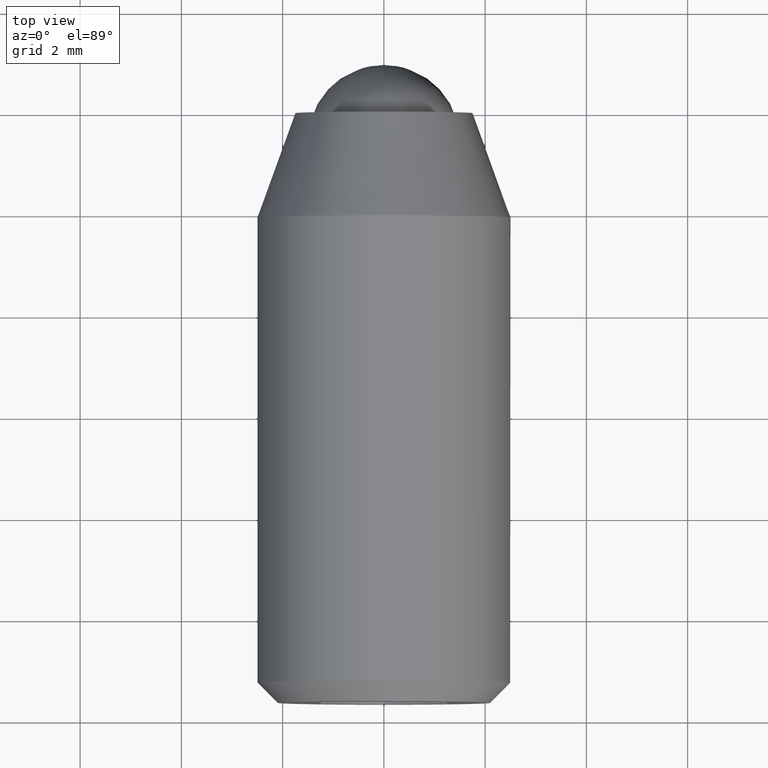
[diagram: clean part render]
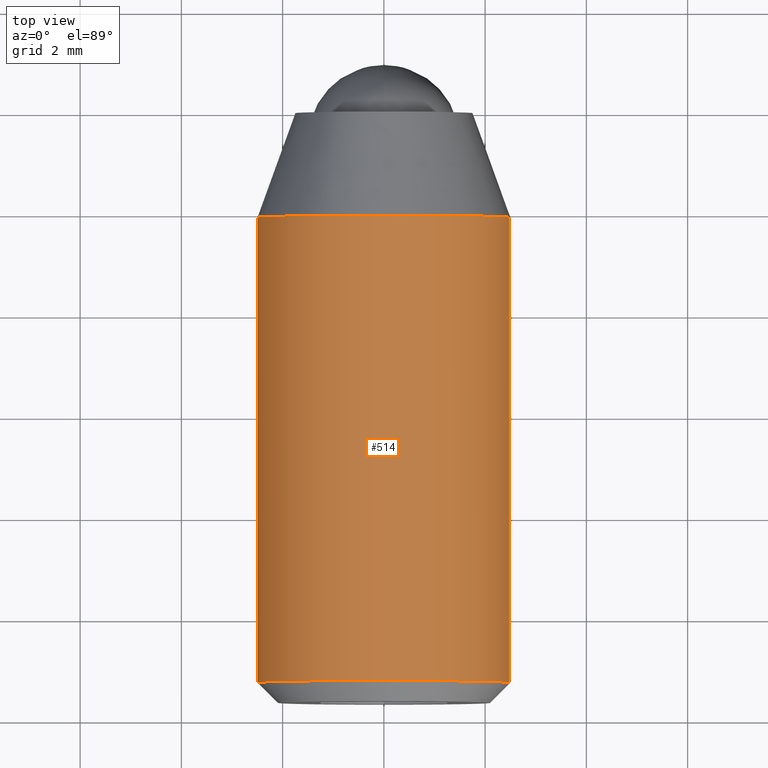
[diagram: same view with one face highlighted and labeled with its STEP entity id]
A machine part, top view. The second image highlights one B-rep face of the part: STEP entity #514.
In plain terms, the highlighted face is a freeform B-spline surface patch.
Its self-contained STEP definition (entity closure, byte-faithful):
#309=CARTESIAN_POINT('',(-2.495337114130603,-2.060607997454079,0.152619403109031));
#310=VERTEX_POINT('',#309);
#316=CARTESIAN_POINT('',(0.0,-2.060608000000000,2.500000000000000));
#317=VERTEX_POINT('',#316);
#318=CARTESIAN_POINT('',(0.0,-2.060608000000000,2.500000000000000));
#319=CARTESIAN_POINT('',(-2.351767004416773,-2.060607999999999,2.500000000000000));
#320=CARTESIAN_POINT('',(-2.495337114130602,-2.060607997454079,0.152619403109031));
#328=(BOUNDED_CURVE()B_SPLINE_CURVE(2,(#318,#319,#320),.UNSPECIFIED.,.F.,.U.)B_SPLINE_CURVE_WITH_KNOTS((3,3),(0.500000000000000,0.739333096780675),.UNSPECIFIED.)CURVE()GEOMETRIC_REPRESENTATION_ITEM()RATIONAL_B_SPLINE_CURVE((1.0,0.719603835661266,0.976072330015430))REPRESENTATION_ITEM(''));
#329=EDGE_CURVE('',#317,#310,#328,.T.);
#331=CARTESIAN_POINT('',(2.483673312039143,-2.060608000000000,0.285248802024170));
#332=VERTEX_POINT('',#331);
#333=CARTESIAN_POINT('',(2.483673312039144,-2.060608000000000,0.285248802024170));
#334=CARTESIAN_POINT('',(2.229310098110104,-2.060608000000001,2.500000000000000));
#335=CARTESIAN_POINT('',(0.0,-2.060608000000000,2.500000000000000));
#343=(BOUNDED_CURVE()B_SPLINE_CURVE(2,(#333,#334,#335),.UNSPECIFIED.,.F.,.U.)B_SPLINE_CURVE_WITH_KNOTS((3,3),(0.269767561009632,0.500000000000000),.UNSPECIFIED.)CURVE()GEOMETRIC_REPRESENTATION_ITEM()RATIONAL_B_SPLINE_CURVE((0.957344120854817,0.730265919475357,1.0))REPRESENTATION_ITEM(''));
#344=EDGE_CURVE('',#332,#317,#343,.T.);
#435=CARTESIAN_POINT('',(2.483672983589284,-1.830873199999999,0.285251661850900));
#436=CARTESIAN_POINT('',(2.244537881465204,-1.830873199999999,2.367389899783016));
#437=CARTESIAN_POINT('',(0.152621348837143,-1.830873199999999,2.495336996054666));
#438=CARTESIAN_POINT('',(-2.342715647217524,-1.830873200000000,2.647958344891809));
#439=CARTESIAN_POINT('',(-2.495336996054667,-1.830873199999999,0.152621348837142));
#440=CARTESIAN_POINT('',(2.483672983589284,-11.485478170000007,0.285251661850900));
#441=CARTESIAN_POINT('',(2.244537881465204,-11.485478170000000,2.367389899783016));
#442=CARTESIAN_POINT('',(0.152621348837143,-11.485478170000000,2.495336996054666));
#443=CARTESIAN_POINT('',(-2.342715647217524,-11.485478170000002,2.647958344891809));
#444=CARTESIAN_POINT('',(-2.495336996054667,-11.485478170000000,0.152621348837142));
#452=(BOUNDED_SURFACE()B_SPLINE_SURFACE(2,1,((#435,#440),(#436,#441),(#437,#442),(#438,#443),(#439,#444)),.UNSPECIFIED.,.F.,.F.,.U.)B_SPLINE_SURFACE_WITH_KNOTS((3,2,3),(2,2),(0.0,3.645079348883235,7.787214972614184),(0.0,9.654604970000005),.UNSPECIFIED.)GEOMETRIC_REPRESENTATION_ITEM()RATIONAL_B_SPLINE_SURFACE(((0.938140952186599,0.938140952186599),(0.742253967444162,0.742253967444162),(1.0,1.0),(0.707106781186548,0.707106781186548),(1.0,1.0)))REPRESENTATION_ITEM('')SURFACE());
#453=CARTESIAN_POINT('',(2.483672983588568,-11.250000000000000,0.285251661857136));
#454=VERTEX_POINT('',#453);
#455=CARTESIAN_POINT('',(0.0,-11.250000000000000,2.500000000000000));
#456=VERTEX_POINT('',#455);
#457=CARTESIAN_POINT('',(2.483672983588568,-11.249999999999998,0.285251661857136));
#458=CARTESIAN_POINT('',(2.229307514286017,-11.249999999999996,2.500000000000000));
#459=CARTESIAN_POINT('',(0.0,-11.250000000000000,2.500000000000000));
#467=(BOUNDED_CURVE()B_SPLINE_CURVE(2,(#457,#458,#459),.UNSPECIFIED.,.F.,.U.)B_SPLINE_CURVE_WITH_KNOTS((3,3),(0.269767755877459,0.500000000000000),.UNSPECIFIED.)CURVE()GEOMETRIC_REPRESENTATION_ITEM()RATIONAL_B_SPLINE_CURVE((0.957343736458988,0.730266147777218,1.0))REPRESENTATION_ITEM(''));
#468=EDGE_CURVE('',#454,#456,#467,.T.);
#469=ORIENTED_EDGE('',*,*,#468,.F.);
#470=CARTESIAN_POINT('',(2.483673312039143,-2.060608000000000,0.285248802024170));
#471=CARTESIAN_POINT('',(2.483672983588568,-11.250000000000000,0.285251661857136));
#472=QUASI_UNIFORM_CURVE('',1,(#470,#471),.UNSPECIFIED.,.F.,.U.);
#473=EDGE_CURVE('',#332,#454,#472,.T.);
#474=ORIENTED_EDGE('',*,*,#473,.F.);
#475=ORIENTED_EDGE('',*,*,#344,.T.);
#476=ORIENTED_EDGE('',*,*,#329,.T.);
#477=CARTESIAN_POINT('',(-2.495337011681478,-11.250000000000000,0.152621093340608));
#478=VERTEX_POINT('',#477);
#479=CARTESIAN_POINT('',(-2.495337114130603,-2.060607997454079,0.152619403109031));
#480=CARTESIAN_POINT('',(-2.495337011681478,-11.250000000000000,0.152621093340608));
#481=QUASI_UNIFORM_CURVE('',1,(#479,#480),.UNSPECIFIED.,.F.,.U.);
#482=EDGE_CURVE('',#310,#478,#481,.T.);
#483=ORIENTED_EDGE('',*,*,#482,.T.);
#484=CARTESIAN_POINT('',(-2.492293334333711,-11.249999999997771,0.196147739336746));
#485=VERTEX_POINT('',#484);
#486=CARTESIAN_POINT('',(-2.492293334333711,-11.249999999997769,0.196147739336746));
#487=CARTESIAN_POINT('',(-2.494005109805297,-11.250000000000005,0.174397569707751));
#488=CARTESIAN_POINT('',(-2.495337011681478,-11.249999999999996,0.152621093340608));
#496=(BOUNDED_CURVE()B_SPLINE_CURVE(2,(#486,#487,#488),.UNSPECIFIED.,.F.,.U.)B_SPLINE_CURVE_WITH_KNOTS((3,3),(0.736331300630434,0.739332997575960),.UNSPECIFIED.)CURVE()GEOMETRIC_REPRESENTATION_ITEM()RATIONAL_B_SPLINE_CURVE((0.969723356166947,0.972855512432523,0.976072117400684))REPRESENTATION_ITEM(''));
#497=EDGE_CURVE('',#485,#478,#496,.T.);
#498=ORIENTED_EDGE('',*,*,#497,.F.);
#499=CARTESIAN_POINT('',(0.0,-11.250000000000000,2.500000000000000));
#500=CARTESIAN_POINT('',(-2.310976229113979,-11.249999999999998,2.500000000000000));
#501=CARTESIAN_POINT('',(-2.492293334333711,-11.249999999997765,0.196147739336746));
#509=(BOUNDED_CURVE()B_SPLINE_CURVE(2,(#499,#500,#501),.UNSPECIFIED.,.F.,.U.)B_SPLINE_CURVE_WITH_KNOTS((3,3),(0.500000000000000,0.736331300630435),.UNSPECIFIED.)CURVE()GEOMETRIC_REPRESENTATION_ITEM()RATIONAL_B_SPLINE_CURVE((1.0,0.723120658607929,0.969723356166948))REPRESENTATION_ITEM(''));
#510=EDGE_CURVE('',#456,#485,#509,.T.);
#511=ORIENTED_EDGE('',*,*,#510,.F.);
#512=EDGE_LOOP('',(#469,#474,#475,#476,#483,#498,#511));
#513=FACE_OUTER_BOUND('',#512,.T.);
#514=ADVANCED_FACE('',(#513),#452,.T.);